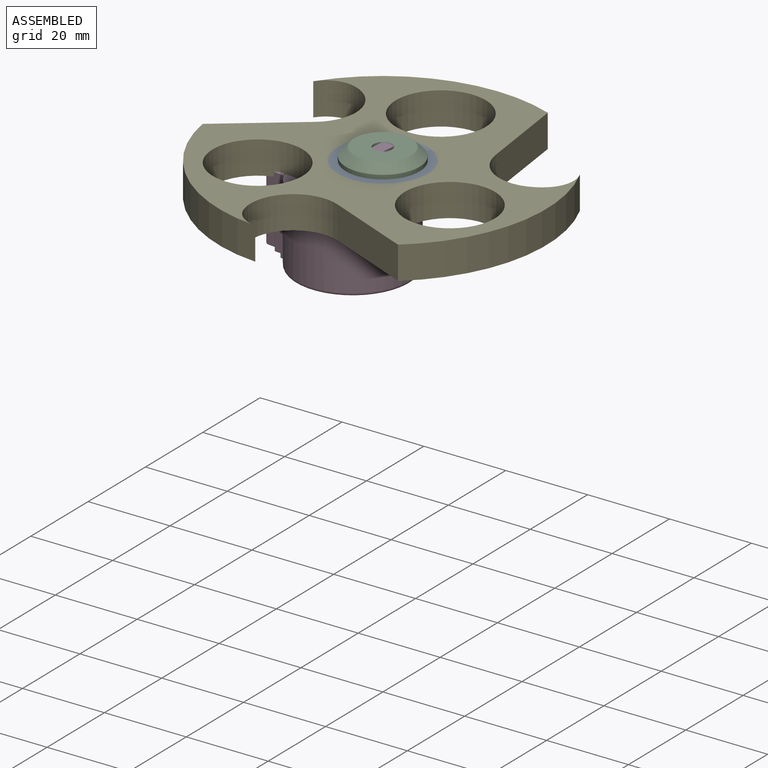
[diagram: assembled view]
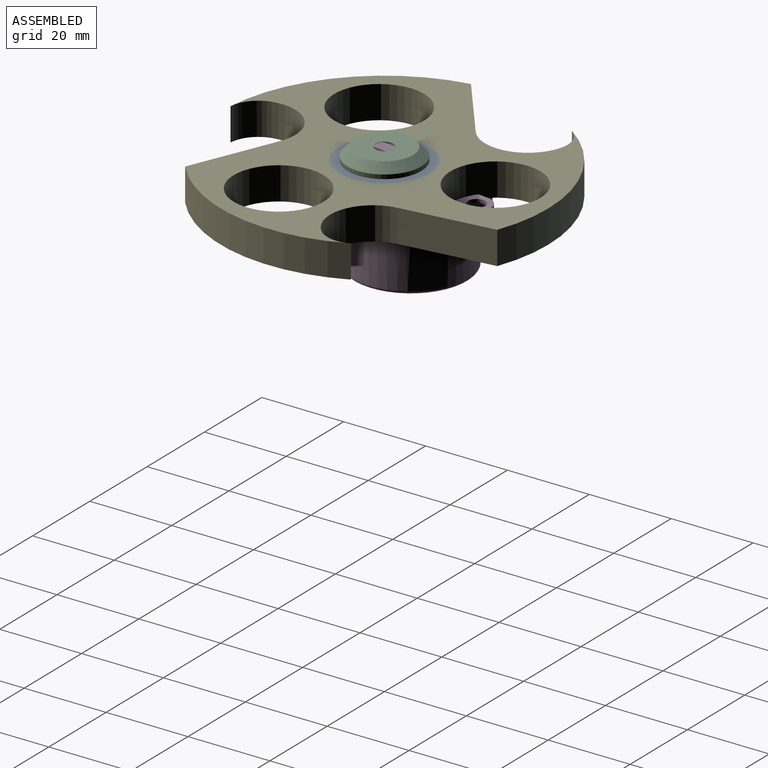
[diagram: assembled view, second angle]
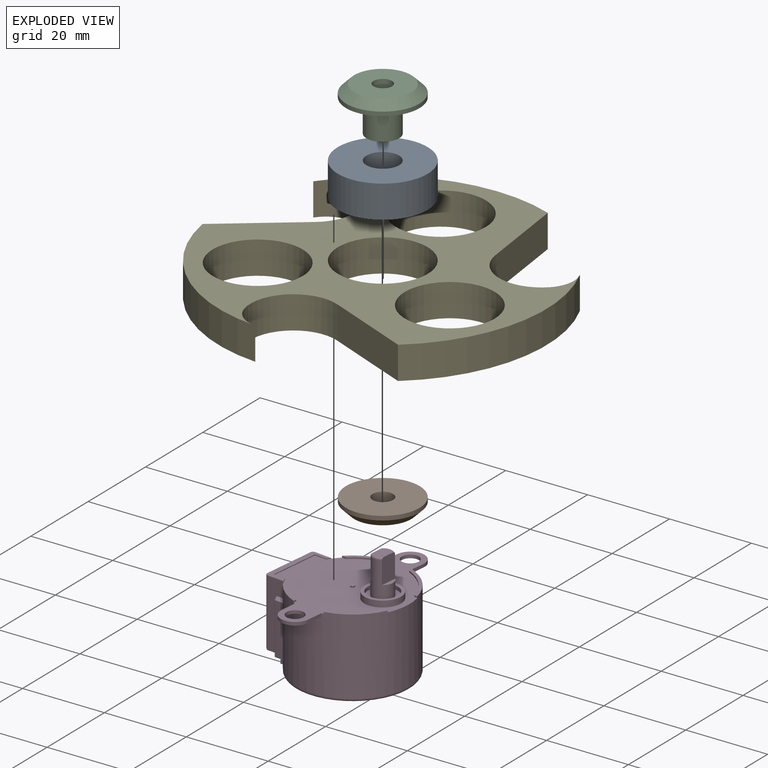
[diagram: exploded view]
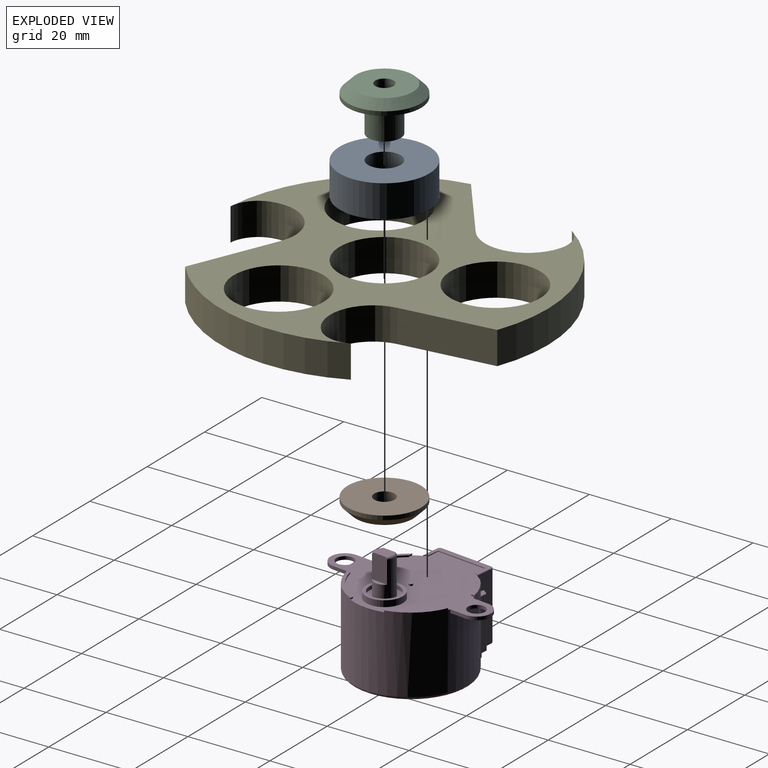
[diagram: exploded view, second angle]
ASSEMBLY  parts=5 mates=4
PART A: 4 faces, bbox 22x22x8 mm
  f0: cylinder r=4mm len=8mm, axis (0,0,-1), area 201.1mm2, adj f2,f3
  f1: cylinder r=11mm len=22mm, axis (0,0,-1), area 552.9mm2, adj f2,f3
  f2: plane 22x22mm, normal (0,0,1), area 329.9mm2, adj f0,f1
  f3: plane 22x22mm, normal (0,0,-1), area 329.9mm2, adj f0,f1
PART B: 5 faces, bbox 18x18x3 mm
  f0: cylinder r=9mm len=18mm, axis (0,0,1), area 56.5mm2, adj f3,f4
  f1: cylinder r=2.5mm len=5mm, axis (0,0,1), area 47.1mm2, adj f2,f3
  f2: plane 14x14mm, normal (0,0,-1), area 134.3mm2, adj f1,f4
  f3: plane 18x18mm, normal (0,0,1), area 234.8mm2, adj f0,f1
  f4: cone r=7mm half-angle=45deg, axis (0,0,1), area 142.2mm2, adj f0,f2
PART C: 7 faces, bbox 18x18x11 mm
  f0: cylinder r=9mm len=18mm, axis (0,0,-1), area 56.5mm2, adj f3,f6
  f1: cylinder r=2.25mm len=11mm, axis (0,0,-1), area 155.5mm2, adj f2,f4
  f2: plane 14x14mm, normal (0,0,1), area 138mm2, adj f1,f6
  f3: plane 18x18mm, normal (0,0,-1), area 204.2mm2, adj f0,f5
  f4: plane 8x8mm, normal (0,0,-1), area 34.4mm2, adj f1,f5
  f5: cylinder r=4mm len=8mm, axis (0,0,1), area 201.1mm2, adj f3,f4
  f6: cone r=7mm half-angle=45deg, axis (0,0,-1), area 142.2mm2, adj f0,f2
PART D: 169 faces, bbox 42.2x35.4x29.2 mm
  f0: plane 0.84x0.4mm, normal (0,-1,0), area 0.3mm2, adj f1,f3,f8,f20
  f1: cylinder r=13.2mm len=5.66mm, axis (0,0,-1), area 2.7mm2, adj f0,f2,f3,f8
  f2: plane 1.07x0.4mm, normal (1,0,0), area 0.4mm2, adj f1,f3,f8,f20
  f3: plane 6.72x4.42mm, normal (0,0,1), area 6mm2, adj f0,f1,f2,f20
  f4: plane 0.85x0.4mm, normal (1,0,0), area 0.3mm2, adj f5,f7,f8,f20
  f5: cylinder r=13.2mm len=8.41mm, axis (0,0,-1), area 4.8mm2, adj f4,f6,f7,f8
  f6: plane 0.84x0.4mm, normal (0,1,0), area 0.3mm2, adj f5,f7,f8,f20
  f7: plane 9.26x8.92mm, normal (0,0,1), area 10.2mm2, adj f4,f5,f6,f20
  f8: plane 42x29.5mm, normal (0,0,1), area 605.6mm2, adj f0,f1,f2,f4,f5,f6,f9,f10
  f9: plane 0.85x0.4mm, normal (-1,0,0), area 0.3mm2, adj f8,f10,f12,f20
  f10: cylinder r=13.2mm len=8.41mm, axis (0,0,1), area 4.8mm2, adj f8,f9,f11,f12
  f11: plane 0.84x0.4mm, normal (0,1,0), area 0.3mm2, adj f8,f10,f12,f20
  f12: plane 9.26x8.92mm, normal (0,0,1), area 10.2mm2, adj f9,f10,f11,f20
  f13: plane 0.84x0.4mm, normal (0,-1,0), area 0.3mm2, adj f8,f14,f16,f20
  f14: cylinder r=13.2mm len=5.66mm, axis (0,0,1), area 2.7mm2, adj f8,f13,f15,f16
  f15: plane 1.07x0.4mm, normal (-1,0,0), area 0.4mm2, adj f8,f14,f16,f20
  f16: plane 6.72x4.42mm, normal (0,0,1), area 6mm2, adj f13,f14,f15,f20
  f17: cylinder r=0.5mm len=1mm, axis (0,0,1), area 1.3mm2, adj f8,f18
  f18: plane 1x1mm, normal (0,0,1), area 0.8mm2, adj f17
  f19: torus R=13.2mm, axis (0,0,-1), area 108.2mm2, adj f20,f21
  f20: cylinder r=14mm len=28mm, axis (0,0,-1), area 1292.9mm2, adj f0,f2,f3,f4,f6,f7,f8,f9
  f21: plane 26.4x26.4mm, normal (0,0,-1), area 470.4mm2, adj f19,f22,f23,f24,f25,f26,f27,f28
  f22: torus R=5.4mm, axis (0,0,-1), area 2.6mm2, adj f21,f59,f60,f61
  f23: torus R=5.4mm, axis (0,0,-1), area 2.6mm2, adj f21,f55,f56,f57
  f24: torus R=5.4mm, axis (0,0,-1), area 2.6mm2, adj f21,f51,f52,f53
  f25: torus R=5.4mm, axis (0,0,-1), area 2.6mm2, adj f21,f47,f48,f49
  f26: torus R=5.4mm, axis (0,0,-1), area 2.6mm2, adj f21,f43,f44,f45
  f27: torus R=5.4mm, axis (0,0,-1), area 2.6mm2, adj f21,f39,f40,f41
  f28: torus R=5.4mm, axis (0,0,-1), area 2.6mm2, adj f21,f67,f68,f69
  f29: torus R=5.4mm, axis (0,0,-1), area 2.6mm2, adj f21,f63,f64,f65
  f30: cylinder r=0.5mm len=1mm, axis (0,0,-1), area 0.3mm2, adj f31,f33
  f31: plane 1x1mm, normal (0,0,-1), area 0.8mm2, adj f30
  f32: cylinder r=2.25mm len=4.5mm, axis (0,0,1), area 1.4mm2, adj f21,f33
  f33: plane 4.5x4.5mm, normal (0,0,-1), area 15.1mm2, adj f30,f32
  f34: cylinder r=1mm len=2mm, axis (0,0,1), area 3.8mm2, adj f21,f35
  f35: plane 2x2mm, normal (0,0,-1), area 3.1mm2, adj f34
  f36: cylinder r=1mm len=2mm, axis (0,0,1), area 3.8mm2, adj f21,f37
  f37: plane 2x2mm, normal (0,0,-1), area 3.1mm2, adj f36
  f38: cylinder r=9mm len=0.87mm, axis (0,0,1), area 0.6mm2, adj f21,f39,f40,f41
  f39: plane 3.86x1.24mm, normal (-0.28,-0.96,0), area 2mm2, adj f21,f27,f38,f41
  f40: plane 2.95x2.81mm, normal (0.69,0.73,0), area 2mm2, adj f21,f27,f38,f41
  f41: plane 3.58x3.07mm, normal (0,0,-1), area 5.2mm2, adj f27,f38,f39,f40
  f42: cylinder r=9mm len=0.97mm, axis (0,0,1), area 0.6mm2, adj f21,f43,f44,f45
  f43: plane 3.55x1.99mm, normal (0.48,-0.88,0), area 2mm2, adj f21,f26,f42,f45
  f44: plane 4.02x0.74mm, normal (-0.03,1,0), area 2mm2, adj f21,f26,f42,f45
  f45: plane 3.46x2.5mm, normal (0,0,-1), area 5.2mm2, adj f26,f42,f43,f44
  f46: cylinder r=9mm len=0.87mm, axis (0,0,1), area 0.6mm2, adj f21,f47,f48,f49
  f47: plane 3.86x1.24mm, normal (0.96,-0.28,0), area 2mm2, adj f21,f25,f46,f49
  f48: plane 2.95x2.81mm, normal (-0.73,0.69,0), area 2mm2, adj f21,f25,f46,f49
  f49: plane 3.58x3.07mm, normal (0,0,-1), area 5.2mm2, adj f25,f46,f47,f48
  f50: cylinder r=9mm len=0.97mm, axis (0,0,1), area 0.6mm2, adj f21,f51,f52,f53
  f51: plane 3.55x1.99mm, normal (0.88,0.48,0), area 2mm2, adj f21,f24,f50,f53
  f52: plane 4.02x0.74mm, normal (-1,-0.03,0), area 2mm2, adj f21,f24,f50,f53
  f53: plane 3.46x2.5mm, normal (0,0,-1), area 5.2mm2, adj f24,f50,f51,f52
  f54: cylinder r=9mm len=0.87mm, axis (0,0,1), area 0.6mm2, adj f21,f55,f56,f57
  f55: plane 3.86x1.24mm, normal (0.28,0.96,0), area 2mm2, adj f21,f23,f54,f57
  f56: plane 2.95x2.81mm, normal (-0.69,-0.73,0), area 2mm2, adj f21,f23,f54,f57
  f57: plane 3.58x3.07mm, normal (0,0,-1), area 5.2mm2, adj f23,f54,f55,f56
  f58: cylinder r=9mm len=0.97mm, axis (0,0,1), area 0.6mm2, adj f21,f59,f60,f61
  f59: plane 3.55x1.99mm, normal (-0.48,0.88,0), area 2mm2, adj f21,f22,f58,f61
  f60: plane 4.02x0.74mm, normal (0.03,-1,0), area 2mm2, adj f21,f22,f58,f61
  f61: plane 3.46x2.5mm, normal (0,0,-1), area 5.2mm2, adj f22,f58,f59,f60
  f62: cylinder r=9mm len=0.87mm, axis (0,0,1), area 0.6mm2, adj f21,f63,f64,f65
  f63: plane 3.86x1.24mm, normal (-0.96,0.28,0), area 2mm2, adj f21,f29,f62,f65
  f64: plane 2.95x2.81mm, normal (0.73,-0.69,0), area 2mm2, adj f21,f29,f62,f65
  f65: plane 3.58x3.07mm, normal (0,0,-1), area 5.2mm2, adj f29,f62,f63,f64
  f66: cylinder r=9mm len=0.97mm, axis (0,0,1), area 0.6mm2, adj f21,f67,f68,f69
  f67: plane 3.55x1.99mm, normal (-0.88,-0.48,0), area 2mm2, adj f21,f28,f66,f69
  f68: plane 4.02x0.74mm, normal (1,0.03,0), area 2mm2, adj f21,f28,f66,f69
  f69: plane 3.46x2.5mm, normal (0,0,-1), area 5.2mm2, adj f28,f66,f67,f68
  f70: sphere r=0.2mm, area 0.1mm2, adj f71,f72,f84
  f71: cylinder r=0.2mm len=0.8mm, axis (0,0,-1), area 0.3mm2, adj f70,f111,f137,f138
  f72: cylinder r=0.2mm len=0.3mm, axis (0,1,0), area 0.1mm2, adj f20,f70,f138,f139
  f73: sphere r=0.2mm, area 0mm2, adj f83,f84,f85
  f74: sphere r=0.2mm, area 0mm2, adj f80,f81,f82
  f75: sphere r=0.2mm, area 0mm2, adj f78,f79,f80
  f76: bspline ~0.7x0.7mm, area 0.1mm2, adj f77,f86,f110
  f77: cylinder r=0.2mm len=2.44mm, axis (0,-1,0), area 0.7mm2, adj f76,f78,f87,f111
  f78: torus R=15.55mm, axis (0,0,1), area 0.5mm2, adj f75,f77,f88,f111
  f79: cylinder r=0.2mm len=1.53mm, axis (0,-1,0), area 0.4mm2, adj f75,f83,f90,f111,f137
  f80: cylinder r=0.2mm len=12.35mm, axis (0,0,1), area 2.4mm2, adj f74,f75,f88,f90
  f81: cylinder r=0.2mm len=2.06mm, axis (0,1,0), area 0.6mm2, adj f20,f74,f89,f90
  f82: torus R=15.55mm, axis (0,0,-1), area 0.5mm2, adj f74,f87,f88,f89
  f83: cylinder r=0.2mm len=1mm, axis (0,0,-1), area 0.2mm2, adj f73,f79,f90,f137
  f84: torus R=14.3mm, axis (0,0,1), area 2.4mm2, adj f70,f73,f137,f139
  f85: cylinder r=0.2mm len=0.53mm, axis (0,-1,0), area 0.1mm2, adj f20,f73,f90,f139
  f86: cylinder r=0.7mm len=16.3mm, axis (0,0,1), area 17.6mm2, adj f76,f87,f117,f119
  f87: plane 16.34x4.37mm, normal (-1,0,0), area 45.3mm2, adj f20,f77,f82,f86,f88,f89,f118
  f88: cylinder r=15.75mm len=12.35mm, axis (0,0,-1), area 20.2mm2, adj f78,f80,f82,f87
  f89: plane 2.67x1.3mm, normal (0,0,1), area 2.4mm2, adj f20,f81,f82,f87
  f90: plane 13.35x2.06mm, normal (-1,0,0), area 26mm2, adj f20,f79,f80,f81,f83,f85
  f91: sphere r=0.2mm, area 0.1mm2, adj f92,f105,f106
  f92: cylinder r=0.2mm len=0.8mm, axis (0,0,-1), area 0.3mm2, adj f91,f111,f112,f113
  f93: sphere r=0.2mm, area 0mm2, adj f103,f104,f105
  f94: sphere r=0.2mm, area 0mm2, adj f99,f101,f102
  f95: sphere r=0.2mm, area 0mm2, adj f98,f99,f100
  f96: bspline ~0.7x0.7mm, area 0.1mm2, adj f97,f109,f110
  f97: cylinder r=0.2mm len=2.44mm, axis (0,1,0), area 0.7mm2, adj f96,f98,f108,f111
  f98: torus R=15.55mm, axis (0,0,-1), area 0.5mm2, adj f95,f97,f107,f111
  f99: cylinder r=0.2mm len=12.35mm, axis (0,0,1), area 2.4mm2, adj f94,f95,f107,f141
  f100: cylinder r=0.2mm len=1.53mm, axis (0,-1,0), area 0.4mm2, adj f95,f103,f111,f112,f141
  f101: torus R=15.55mm, axis (0,0,1), area 0.5mm2, adj f94,f107,f108,f142
  f102: cylinder r=0.2mm len=2.06mm, axis (0,1,0), area 0.6mm2, adj f20,f94,f141,f142
  f103: cylinder r=0.2mm len=1mm, axis (0,0,-1), area 0.2mm2, adj f93,f100,f112,f141
  f104: cylinder r=0.2mm len=0.53mm, axis (0,-1,0), area 0.1mm2, adj f20,f93,f140,f141
  f105: torus R=14.3mm, axis (0,0,-1), area 2.4mm2, adj f91,f93,f112,f140
  f106: cylinder r=0.2mm len=0.3mm, axis (0,1,0), area 0.1mm2, adj f20,f91,f113,f140
  f107: cylinder r=15.75mm len=12.35mm, axis (0,0,1), area 20.2mm2, adj f98,f99,f101,f108
  f108: plane 16.34x4.37mm, normal (1,0,0), area 45.3mm2, adj f20,f97,f101,f107,f109,f114,f142
  f109: cylinder r=0.7mm len=16.3mm, axis (0,0,1), area 17.6mm2, adj f96,f108,f115,f119
  f110: cylinder r=0.7mm len=14.1mm, axis (-1,0,0), area 15mm2, adj f76,f96,f111,f119
  f111: plane 17.1x4.59mm, normal (0,0,-1), area 39mm2, adj f20,f71,f77,f78,f79,f92,f97,f98
  f112: cylinder r=14.5mm len=6.95mm, axis (0,0,-1), area 6.1mm2, adj f92,f100,f103,f105,f111
  f113: plane 0.8x0.28mm, normal (-1,0,0), area 0.2mm2, adj f20,f92,f106,f111
  f114: cylinder r=0.2mm len=4.32mm, axis (0,1,0), area 1.3mm2, adj f108,f115,f120,f121
  f115: torus R=0.5mm, axis (0,0,-1), area 0.3mm2, adj f109,f114,f116,f121
  f116: cylinder r=0.2mm len=13.1mm, axis (-1,0,0), area 4.1mm2, adj f115,f117,f119,f121
  f117: torus R=0.5mm, axis (0,0,-1), area 0.3mm2, adj f86,f116,f118,f121
  f118: cylinder r=0.2mm len=4.32mm, axis (0,-1,0), area 1.3mm2, adj f87,f117,f121,f143
  f119: plane 15.8x13.1mm, normal (0,1,0), area 197mm2, adj f86,f109,f110,f116,f132,f133,f134,f135
  f120: cylinder r=14mm len=1mm, axis (0,0,1), area 0.2mm2, adj f8,f114,f121,f146
  f121: plane 14.1x4.7mm, normal (0,0,1), area 23.3mm2, adj f114,f115,f116,f117,f118,f120,f143,f144
  f122: cylinder r=0.5mm len=5mm, axis (0,1,0), area 15.7mm2, adj f123,f136
  f123: plane 1x1mm, normal (0,1,0), area 0.8mm2, adj f122
  f124: cylinder r=0.5mm len=5mm, axis (0,1,0), area 15.7mm2, adj f125,f136
  f125: plane 1x1mm, normal (0,1,0), area 0.8mm2, adj f124
  f126: cylinder r=0.5mm len=5mm, axis (0,1,0), area 15.7mm2, adj f127,f136
  f127: plane 1x1mm, normal (0,1,0), area 0.8mm2, adj f126
  f128: cylinder r=0.5mm len=5mm, axis (0,1,0), area 15.7mm2, adj f129,f136
  f129: plane 1x1mm, normal (0,1,0), area 0.8mm2, adj f128
  f130: cylinder r=0.5mm len=5mm, axis (0,1,0), area 15.7mm2, adj f131,f136
  f131: plane 1x1mm, normal (0,1,0), area 0.8mm2, adj f130
  f132: cylinder r=0.7mm len=2mm, axis (0,-1,0), area 4.4mm2, adj f119,f133,f135,f136
  f133: plane 6x2mm, normal (0,0,-1), area 12mm2, adj f119,f132,f134,f136
  f134: cylinder r=0.7mm len=2mm, axis (0,-1,0), area 4.4mm2, adj f119,f133,f135,f136
  f135: plane 6x2mm, normal (0,0,1), area 12mm2, adj f119,f132,f134,f136
  f136: plane 7.4x1.4mm, normal (0,1,0), area 6mm2, adj f122,f124,f126,f128,f130,f132,f133,f134
  f137: cylinder r=14.5mm len=6.95mm, axis (0,0,1), area 6.1mm2, adj f71,f79,f83,f84,f111
  f138: plane 0.8x0.28mm, normal (1,0,0), area 0.2mm2, adj f20,f71,f72,f111
  f139: plane 6.85x3.11mm, normal (0,0,-1), area 2.2mm2, adj f20,f72,f84,f85
  f140: plane 6.85x3.11mm, normal (0,0,-1), area 2.2mm2, adj f20,f104,f105,f106
  f141: plane 13.35x2.06mm, normal (1,0,0), area 26mm2, adj f20,f99,f100,f102,f103,f104
  f142: plane 2.67x1.3mm, normal (0,0,1), area 2.4mm2, adj f20,f101,f102,f108
  f143: cylinder r=14mm len=1mm, axis (0,0,1), area 0.2mm2, adj f8,f118,f121,f144
  f144: plane 2.97x0.2mm, normal (1,0,0), area 0.6mm2, adj f8,f121,f143,f145
  f145: plane 12.5x0.2mm, normal (0,-1,0), area 2.5mm2, adj f8,f121,f144,f146
  f146: plane 2.97x0.2mm, normal (-1,0,0), area 0.6mm2, adj f8,f120,f121,f145
  f147: plane 6.22x4.22mm, normal (0,1,0), area 23.9mm2, adj f148,f149,f150,f153,f154
  f148: plane 4x1mm, normal (0,0,1), area 2.8mm2, adj f147,f149
  f149: cylinder r=2.5mm len=8.9mm, axis (0,0,1), area 88.8mm2, adj f147,f148,f150,f151,f152,f153,f156
  f150: torus R=2mm, axis (0,0,1), area 2.7mm2, adj f147,f149,f152,f154
  f151: plane 4x1mm, normal (0,0,1), area 2.8mm2, adj f149,f152
  f152: plane 6.22x4.22mm, normal (0,-1,0), area 23.9mm2, adj f149,f150,f151,f153,f154
  f153: torus R=2mm, axis (0,0,1), area 2.7mm2, adj f147,f149,f152,f154
  f154: plane 4x3mm, normal (0,0,1), area 10.8mm2, adj f147,f150,f152,f153
  f155: cylinder r=3.7mm len=7.4mm, axis (0,0,-1), area 20.9mm2, adj f156,f158
  f156: plane 7.4x7.4mm, normal (0,0,1), area 23.4mm2, adj f149,f155
  f157: cylinder r=4.5mm len=9mm, axis (0,0,1), area 42.4mm2, adj f8,f158
  f158: plane 9x9mm, normal (0,0,1), area 20.6mm2, adj f155,f157
  f159: cylinder r=3.5mm len=7mm, axis (0,0,-1), area 8.8mm2, adj f8,f160,f162,f163
  f160: plane 7.44x7mm, normal (0,0,-1), area 30.9mm2, adj f20,f159,f161,f162,f163
  f161: cylinder r=2.1mm len=4.2mm, axis (0,0,-1), area 10.6mm2, adj f8,f160
  f162: plane 3.94x0.8mm, normal (0,-1,0), area 3.2mm2, adj f8,f20,f159,f160
  f163: plane 3.94x0.8mm, normal (0,1,0), area 3.2mm2, adj f8,f20,f159,f160
  f164: plane 7.44x7mm, normal (0,0,-1), area 30.9mm2, adj f20,f165,f166,f167,f168
  f165: cylinder r=3.5mm len=7mm, axis (0,0,-1), area 8.8mm2, adj f8,f164,f167,f168
  f166: cylinder r=2.1mm len=4.2mm, axis (0,0,1), area 10.6mm2, adj f8,f164
  f167: plane 3.94x0.8mm, normal (0,-1,0), area 3.2mm2, adj f8,f20,f164,f165
  f168: plane 3.94x0.8mm, normal (0,1,0), area 3.2mm2, adj f8,f20,f164,f165
PART E: 18 faces, bbox 80x79.1x8 mm
  f0: plane 22.59x8mm, normal (1,0,0), area 180.7mm2, adj f1,f15,f16,f17
  f1: cylinder r=40mm len=48.5mm, axis (0,0,-1), area 424.4mm2, adj f0,f2,f16,f17
  f2: cylinder r=7.23mm len=8.28mm, axis (0,0,-1), area 72.4mm2, adj f1,f3,f16,f17
  f3: cylinder r=10.46mm len=18.64mm, axis (0,0,-1), area 184.4mm2, adj f2,f4,f16,f17
  f4: plane 19.57x11.3mm, normal (-0.5,0.87,0), area 180.7mm2, adj f3,f5,f16,f17
  f5: cylinder r=40mm len=37.75mm, axis (0,0,-1), area 424.4mm2, adj f4,f6,f16,f17
  f6: cylinder r=7.23mm len=8mm, axis (0,0,-1), area 72.4mm2, adj f5,f7,f16,f17
  f7: cylinder r=10.46mm len=15.7mm, axis (0,0,-1), area 184.4mm2, adj f6,f8,f16,f17
  f8: plane 19.57x11.3mm, normal (-0.5,-0.87,0), area 180.7mm2, adj f7,f9,f16,f17
  f9: cylinder r=40mm len=46.26mm, axis (0,0,-1), area 424.4mm2, adj f8,f10,f16,f17
  f10: cylinder r=7.23mm len=8.06mm, axis (0,0,-1), area 72.4mm2, adj f9,f15,f16,f17
  f11: cylinder r=11mm len=22mm, axis (0,0,-1), area 552.9mm2, adj f16,f17
  f12: cylinder r=11mm len=22mm, axis (0,0,-1), area 552.9mm2, adj f16,f17
  f13: cylinder r=11mm len=22mm, axis (0,0,-1), area 552.9mm2, adj f16,f17
  f14: cylinder r=11mm len=22mm, axis (0,0,-1), area 552.9mm2, adj f16,f17
  f15: cylinder r=10.46mm len=16.65mm, axis (0,0,-1), area 184.4mm2, adj f0,f10,f16,f17
  f16: plane 79.98x79.12mm, normal (0,0,1), area 2190.3mm2, adj f0,f1,f2,f3,f4,f5,f6,f7
  f17: plane 79.98x79.12mm, normal (0,0,-1), area 2190.3mm2, adj f0,f1,f2,f3,f4,f5,f6,f7
PLACE A t=(-29.28,12.71,0)mm
PLACE B t=(-29.28,12.71,0)mm
PLACE C t=(-29.28,12.71,0)mm
PLACE D rot(axis=(0,0,1),83.8deg) t=(0,0,1)mm
PLACE E rot(axis=(0,0,1),7.4deg) t=(-30.67,8.84,0)mm
MATE revolute E.f1 <-> A.f0  axis (0,0,-1) through (0,0,0)mm
MATE fastened A.f0 <-> B.f0  axis (0,0,-1) through (0,0,0)mm
MATE fastened A.f0 <-> C.f0  axis (0,0,-1) through (0,0,8)mm
MATE revolute D.f149 <-> C.f0  axis (0,0,1) through (0,0,11)mm
